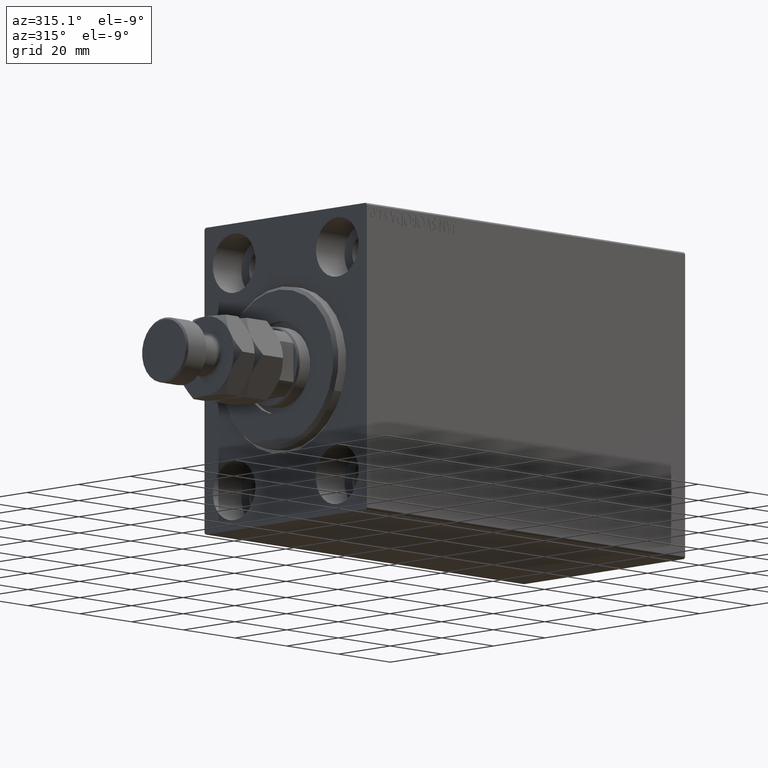
[diagram: clean part render]
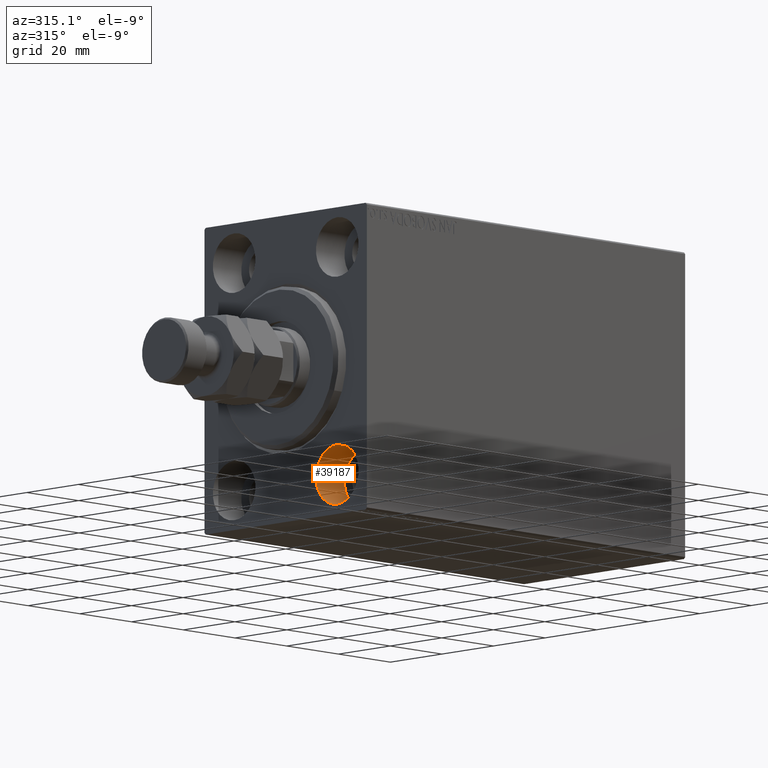
[diagram: same view with one face highlighted and labeled with its STEP entity id]
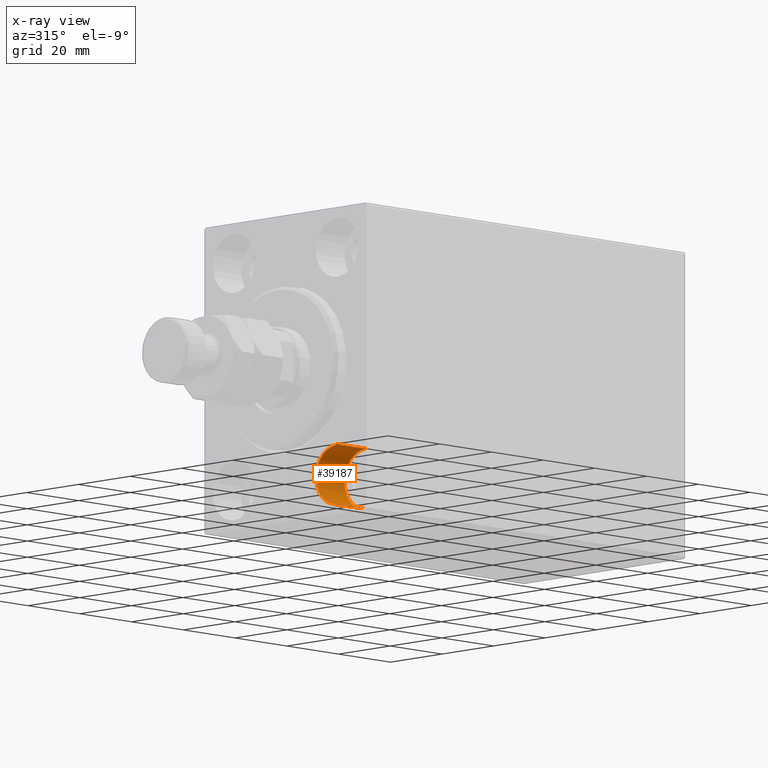
[diagram: x-ray of the same camera — body ghosted, the highlighted face saturated]
A machine part, auxiliary view. The second image highlights one B-rep face of the part: STEP entity #39187.
The next image is the same camera in x-ray: the body ghosted, the highlighted face saturated — about 0% of this face is hidden behind the body in this view.
In plain terms, the highlighted cylindrical surface (edge-blend (fillet) strip) has radius 8.25 mm, axis along (-1, -0, -0).
Its self-contained STEP definition (entity closure, byte-faithful):
#520 = VECTOR ( 'NONE', #26899, 1000.000000000000000 ) ;
#2515 = FACE_OUTER_BOUND ( 'NONE', #4511, .T. ) ;
#2740 = DIRECTION ( 'NONE',  ( 0.000000000000000000, 0.000000000000000000, 1.000000000000000000 ) ) ;
#2762 = AXIS2_PLACEMENT_3D ( 'NONE', #27087, #3204, #2740 ) ;
#2917 = ORIENTED_EDGE ( 'NONE', *, *, #8845, .F. ) ;
#3204 = DIRECTION ( 'NONE',  ( -1.000000000000000000, -0.000000000000000000, -0.000000000000000000 ) ) ;
#4511 = EDGE_LOOP ( 'NONE', ( #2917, #45419, #7772, #14544 ) ) ;
#7772 = ORIENTED_EDGE ( 'NONE', *, *, #37518, .T. ) ;
#8845 = EDGE_CURVE ( 'NONE', #17785, #38711, #16114, .T. ) ;
#9322 = LINE ( 'NONE', #34592, #35526 ) ;
#11040 = VERTEX_POINT ( 'NONE', #32012 ) ;
#11728 = CARTESIAN_POINT ( 'NONE',  ( 11.00000000000000000, -20.00000000000000355, -39.74999999999999289 ) ) ;
#12359 = CARTESIAN_POINT ( 'NONE',  ( 0.000000000000000000, -20.00000000000000355, -31.49999999999999289 ) ) ;
#13824 = DIRECTION ( 'NONE',  ( -1.000000000000000000, 0.000000000000000000, 0.000000000000000000 ) ) ;
#13980 = EDGE_CURVE ( 'NONE', #11040, #38711, #42435, .T. ) ;
#14544 = ORIENTED_EDGE ( 'NONE', *, *, #13980, .T. ) ;
#16114 = LINE ( 'NONE', #37230, #520 ) ;
#17613 = CARTESIAN_POINT ( 'NONE',  ( 0.000000000000000000, -20.00000000000000355, -39.74999999999999289 ) ) ;
#17785 = VERTEX_POINT ( 'NONE', #11728 ) ;
#18180 = AXIS2_PLACEMENT_3D ( 'NONE', #20736, #13824, #34734 ) ;
#19254 = DIRECTION ( 'NONE',  ( -1.000000000000000000, 0.000000000000000000, 0.000000000000000000 ) ) ;
#20736 = CARTESIAN_POINT ( 'NONE',  ( 11.00000000000000000, -20.00000000000000355, -31.49999999999999289 ) ) ;
#22819 = CARTESIAN_POINT ( 'NONE',  ( 11.00000000000000000, -20.00000000000000355, -23.24999999999999289 ) ) ;
#24768 = CIRCLE ( 'NONE', #18180, 8.250000000000000000 ) ;
#26899 = DIRECTION ( 'NONE',  ( -1.000000000000000000, -0.000000000000000000, -0.000000000000000000 ) ) ;
#27087 = CARTESIAN_POINT ( 'NONE',  ( 11.00000000000000000, -20.00000000000000355, -31.49999999999999289 ) ) ;
#30910 = DIRECTION ( 'NONE',  ( -1.000000000000000000, -0.000000000000000000, -0.000000000000000000 ) ) ;
#32012 = CARTESIAN_POINT ( 'NONE',  ( 0.000000000000000000, -20.00000000000000355, -23.24999999999999289 ) ) ;
#33256 = DIRECTION ( 'NONE',  ( 0.000000000000000000, 0.000000000000000000, 1.000000000000000000 ) ) ;
#34592 = CARTESIAN_POINT ( 'NONE',  ( 11.00000000000000000, -20.00000000000000355, -23.24999999999999289 ) ) ;
#34667 = CYLINDRICAL_SURFACE ( 'NONE', #2762, 8.250000000000000000 ) ;
#34734 = DIRECTION ( 'NONE',  ( 0.000000000000000000, 0.000000000000000000, 1.000000000000000000 ) ) ;
#35526 = VECTOR ( 'NONE', #30910, 1000.000000000000000 ) ;
#37230 = CARTESIAN_POINT ( 'NONE',  ( 11.00000000000000000, -20.00000000000000355, -39.74999999999999289 ) ) ;
#37518 = EDGE_CURVE ( 'NONE', #44812, #11040, #9322, .T. ) ;
#38711 = VERTEX_POINT ( 'NONE', #17613 ) ;
#39187 = ADVANCED_FACE ( 'NONE', ( #2515 ), #34667, .F. ) ;
#40096 = EDGE_CURVE ( 'NONE', #44812, #17785, #24768, .T. ) ;
#42435 = CIRCLE ( 'NONE', #43192, 8.250000000000000000 ) ;
#43192 = AXIS2_PLACEMENT_3D ( 'NONE', #12359, #19254, #33256 ) ;
#44812 = VERTEX_POINT ( 'NONE', #22819 ) ;
#45419 = ORIENTED_EDGE ( 'NONE', *, *, #40096, .F. ) ;